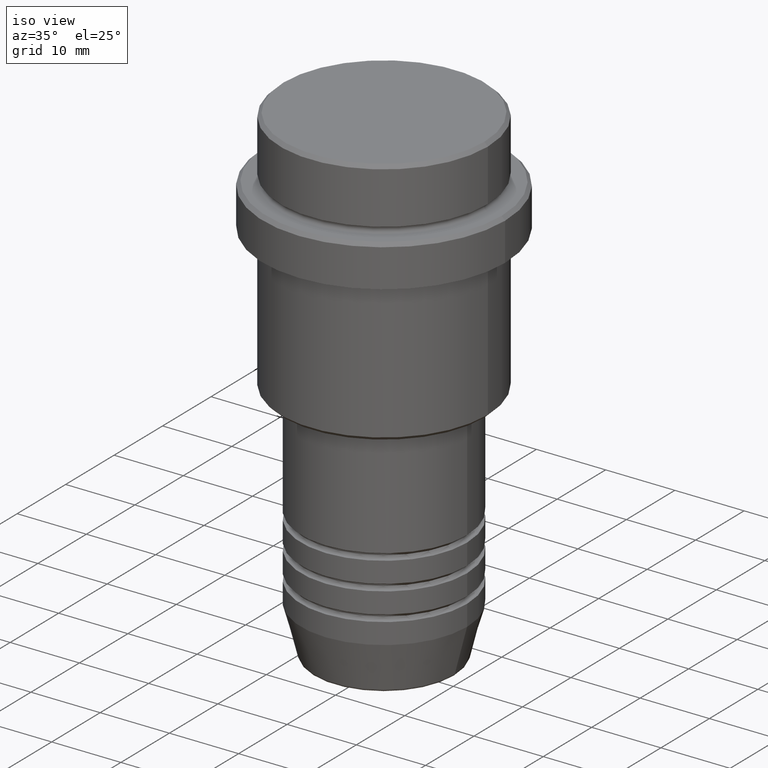
[diagram: clean part render]
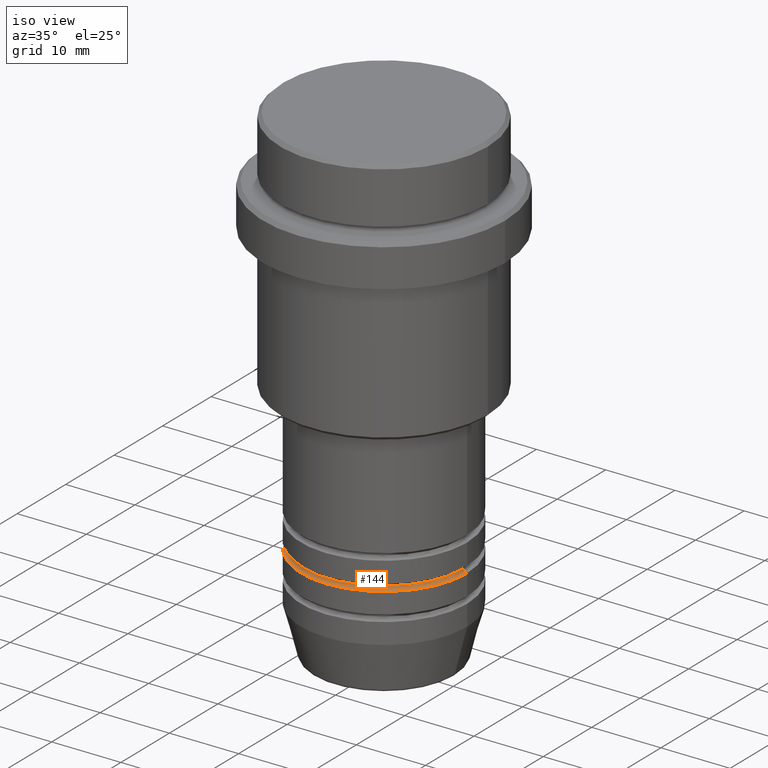
[diagram: same view with one face highlighted and labeled with its STEP entity id]
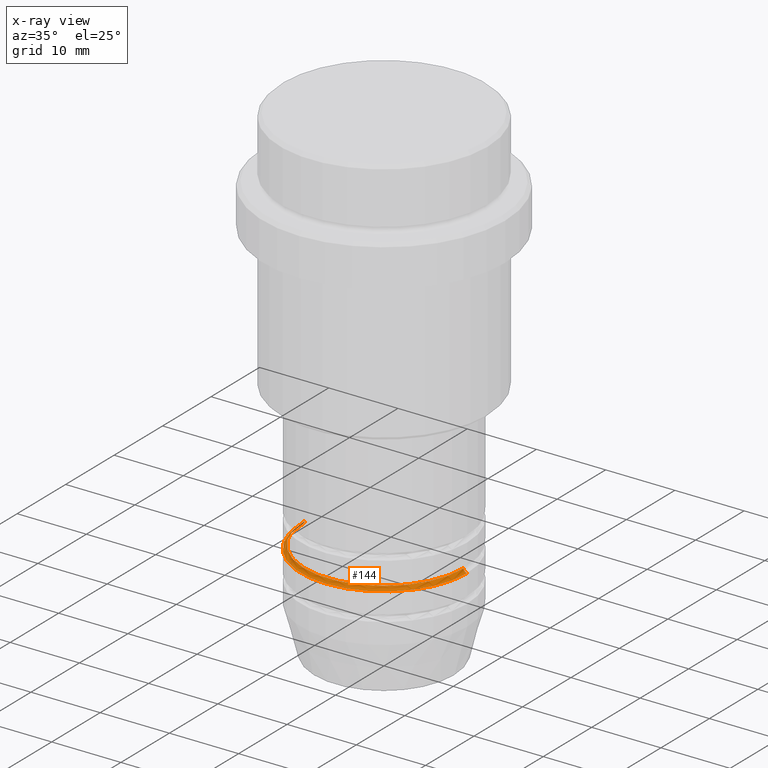
[diagram: x-ray of the same camera — body ghosted, the highlighted face saturated]
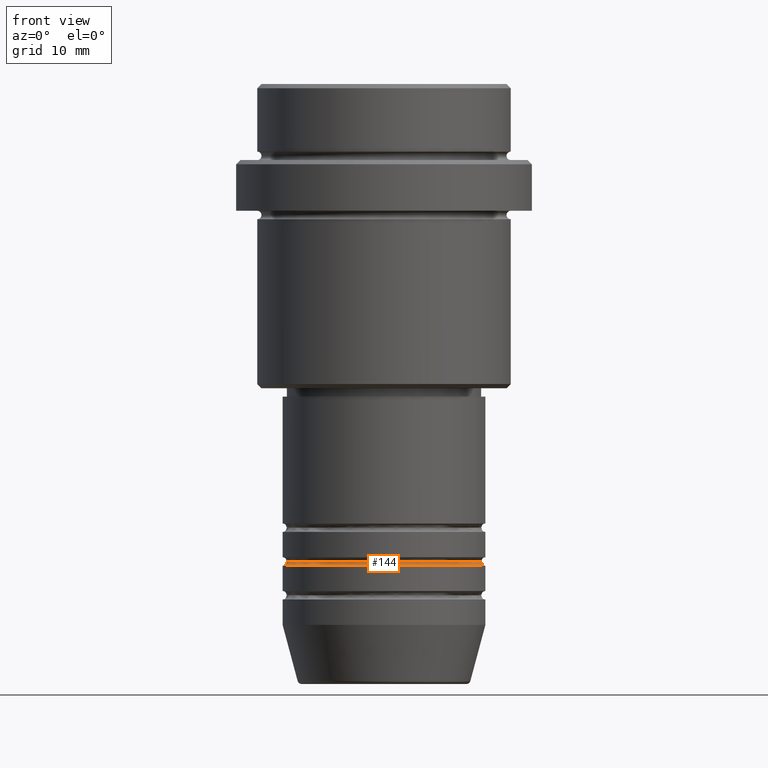
[diagram: same view with one face highlighted and labeled with its STEP entity id]
A machine part, iso view. The second image highlights one B-rep face of the part: STEP entity #144.
The next image is the same camera in x-ray: the body ghosted, the highlighted face saturated — about 2% of this face is hidden behind the body in this view.
A second angle (front view) of the same face is appended — the face is thin or edge-on in the first view.
In plain terms, the highlighted toroidal blend (fillet) surface has major radius 12 mm and minor (blend) radius 0.5 mm.
Its self-contained STEP definition (entity closure, byte-faithful):
#22 = EDGE_LOOP ( 'NONE', ( #285, #789, #931, #538 ) ) ;
#49 = TOROIDAL_SURFACE ( 'NONE', #426, 11.99999999999998934, 0.5000000000000000000 ) ;
#114 = DIRECTION ( 'NONE',  ( -0.000000000000000000, -0.000000000000000000, 1.000000000000000000 ) ) ;
#123 = DIRECTION ( 'NONE',  ( 0.000000000000000000, 0.000000000000000000, -1.000000000000000000 ) ) ;
#126 = DIRECTION ( 'NONE',  ( -0.000000000000000000, -0.000000000000000000, 1.000000000000000000 ) ) ;
#144 = ADVANCED_FACE ( 'NONE', ( #220 ), #49, .F. ) ;
#150 = DIRECTION ( 'NONE',  ( 1.000000000000000000, 0.000000000000000000, 0.000000000000000000 ) ) ;
#202 = DIRECTION ( 'NONE',  ( 1.000000000000000000, 0.000000000000000000, 0.000000000000000000 ) ) ;
#220 = FACE_OUTER_BOUND ( 'NONE', #22, .T. ) ;
#222 = EDGE_CURVE ( 'NONE', #340, #925, #1234, .T. ) ;
#226 = CARTESIAN_POINT ( 'NONE',  ( -12.00000000000000000, 1.469576158976823947E-15, -56.99999999999988631 ) ) ;
#285 = ORIENTED_EDGE ( 'NONE', *, *, #693, .F. ) ;
#340 = VERTEX_POINT ( 'NONE', #226 ) ;
#426 = AXIS2_PLACEMENT_3D ( 'NONE', #1083, #114, #985 ) ;
#444 = CARTESIAN_POINT ( 'NONE',  ( -11.99999999999998934, 1.469576158976822567E-15, -56.49999999999988631 ) ) ;
#480 = CARTESIAN_POINT ( 'NONE',  ( 0.000000000000000000, 0.000000000000000000, -56.99999999999988631 ) ) ;
#530 = VERTEX_POINT ( 'NONE', #1314 ) ;
#538 = ORIENTED_EDGE ( 'NONE', *, *, #680, .F. ) ;
#595 = CIRCLE ( 'NONE', #791, 0.5000000000000004441 ) ;
#662 = CARTESIAN_POINT ( 'NONE',  ( 0.000000000000000000, 0.000000000000000000, -56.49999999999988631 ) ) ;
#680 = EDGE_CURVE ( 'NONE', #530, #925, #595, .T. ) ;
#682 = DIRECTION ( 'NONE',  ( 0.000000000000000000, -1.000000000000000000, 0.000000000000000000 ) ) ;
#693 = EDGE_CURVE ( 'NONE', #1338, #530, #1373, .T. ) ;
#701 = EDGE_CURVE ( 'NONE', #1338, #340, #1306, .T. ) ;
#766 = AXIS2_PLACEMENT_3D ( 'NONE', #480, #1095, #150 ) ;
#768 = AXIS2_PLACEMENT_3D ( 'NONE', #662, #126, #202 ) ;
#789 = ORIENTED_EDGE ( 'NONE', *, *, #701, .T. ) ;
#791 = AXIS2_PLACEMENT_3D ( 'NONE', #1202, #682, #123 ) ;
#925 = VERTEX_POINT ( 'NONE', #1265 ) ;
#931 = ORIENTED_EDGE ( 'NONE', *, *, #222, .T. ) ;
#985 = DIRECTION ( 'NONE',  ( 1.000000000000000000, 0.000000000000000000, 0.000000000000000000 ) ) ;
#1047 = CARTESIAN_POINT ( 'NONE',  ( -11.49999999999998934, 1.438959988998139371E-15, -56.49999999999988631 ) ) ;
#1083 = CARTESIAN_POINT ( 'NONE',  ( 0.000000000000000000, 0.000000000000000000, -56.49999999999988631 ) ) ;
#1095 = DIRECTION ( 'NONE',  ( -0.000000000000000000, -0.000000000000000000, 1.000000000000000000 ) ) ;
#1202 = CARTESIAN_POINT ( 'NONE',  ( 11.99999999999998934, 0.000000000000000000, -56.49999999999988631 ) ) ;
#1210 = AXIS2_PLACEMENT_3D ( 'NONE', #444, #1404, #1308 ) ;
#1234 = CIRCLE ( 'NONE', #766, 12.00000000000000000 ) ;
#1265 = CARTESIAN_POINT ( 'NONE',  ( 12.00000000000000000, 0.000000000000000000, -56.99999999999988631 ) ) ;
#1306 = CIRCLE ( 'NONE', #1210, 0.5000000000000004441 ) ;
#1308 = DIRECTION ( 'NONE',  ( -1.000000000000000000, 1.224646799147353454E-16, 0.000000000000000000 ) ) ;
#1314 = CARTESIAN_POINT ( 'NONE',  ( 11.49999999999998934, 0.000000000000000000, -56.49999999999988631 ) ) ;
#1338 = VERTEX_POINT ( 'NONE', #1047 ) ;
#1373 = CIRCLE ( 'NONE', #768, 11.49999999999998934 ) ;
#1404 = DIRECTION ( 'NONE',  ( 1.224646799147353207E-16, 1.000000000000000000, 0.000000000000000000 ) ) ;